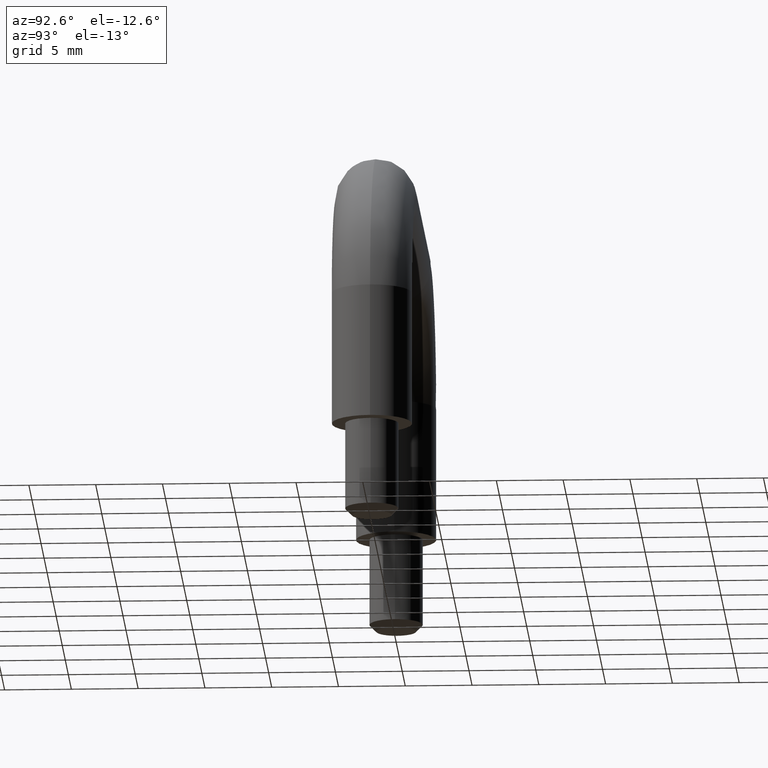
[diagram: clean part render]
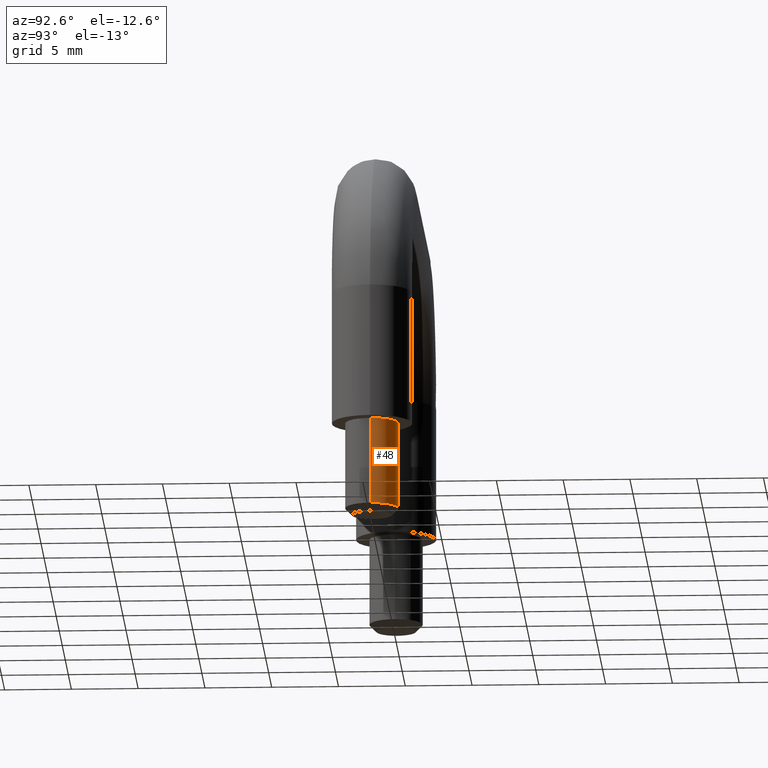
[diagram: same view with one face highlighted and labeled with its STEP entity id]
A machine part, auxiliary view. The second image highlights one B-rep face of the part: STEP entity #48.
In plain terms, the highlighted cylindrical surface (edge-blend (fillet) strip) has radius 2 mm, axis along (-0, 0, -1).
Its self-contained STEP definition (entity closure, byte-faithful):
#48=ADVANCED_FACE('',(#145),#144,.T.);
#144=CYLINDRICAL_SURFACE('',#419,2.00000000000E+00);
#145=FACE_OUTER_BOUND('',#420,.T.);
#416=CARTESIAN_POINT('',(1.99999999999E+01,0.00000000000E+00,-1.92500000000E+01));
#417=DIRECTION('',(-0.00000000000E+00,0.00000000000E+00,-1.00000000000E+00));
#418=DIRECTION('',(-1.00000000000E+00,-0.00000000000E+00,0.00000000000E+00));
#419=AXIS2_PLACEMENT_3D('',#416,#417,#418);
#420=EDGE_LOOP('',(#580,#581,#582,#583));
#580=ORIENTED_EDGE('',*,*,#656,.F.);
#581=ORIENTED_EDGE('',*,*,#657,.F.);
#582=ORIENTED_EDGE('',*,*,#641,.T.);
#583=ORIENTED_EDGE('',*,*,#658,.T.);
#641=EDGE_CURVE('',#707,#706,#714,.T.);
#656=EDGE_CURVE('',#814,#815,#816,.T.);
#657=EDGE_CURVE('',#707,#814,#822,.T.);
#658=EDGE_CURVE('',#706,#815,#828,.T.);
#706=VERTEX_POINT('',#974);
#707=VERTEX_POINT('',#975);
#714=CIRCLE('',#983,2.00000000000E+00);
#814=VERTEX_POINT('',#1047);
#815=VERTEX_POINT('',#1048);
#816=CIRCLE('',#1052,2.00000000000E+00);
#822=(BOUNDED_CURVE() B_SPLINE_CURVE(1,(#1053,#1054),.UNSPECIFIED.,.F.,.F.) B_SPLINE_CURVE_WITH_KNOTS((2,2),(8.33333347523E-02,9.16666664312E-01),.UNSPECIFIED.) CURVE() GEOMETRIC_REPRESENTATION_ITEM() RATIONAL_B_SPLINE_CURVE((1.00000000000E+00,1.00000000000E+00)) REPRESENTATION_ITEM('') );
#828=(BOUNDED_CURVE() B_SPLINE_CURVE(1,(#1055,#1056),.UNSPECIFIED.,.F.,.F.) B_SPLINE_CURVE_WITH_KNOTS((2,2),(8.33333333333E-02,9.16666666667E-01),.UNSPECIFIED.) CURVE() GEOMETRIC_REPRESENTATION_ITEM() RATIONAL_B_SPLINE_CURVE((7.50000000000E-01,7.50000000000E-01)) REPRESENTATION_ITEM('') );
#974=CARTESIAN_POINT('',(2.19999999999E+01,7.40148683083E-17,-1.60000000000E+01));
#975=CARTESIAN_POINT('',(1.79999999999E+01,-4.66965875689E-16,-1.60000000000E+01));
#980=CARTESIAN_POINT('',(1.99999999999E+01,0.00000000000E+00,-1.60000000000E+01));
#981=DIRECTION('',(0.00000000000E+00,0.00000000000E+00,-1.00000000000E+00));
#982=DIRECTION('',(-1.00000000000E+00,-1.11022302463E-16,-0.00000000000E+00));
#983=AXIS2_PLACEMENT_3D('',#980,#981,#982);
#1047=CARTESIAN_POINT('',(1.79999999999E+01,-4.66965875689E-16,-2.25000000000E+01));
#1048=CARTESIAN_POINT('',(2.19999999999E+01,9.62193288008E-16,-2.25000000000E+01));
#1049=CARTESIAN_POINT('',(1.99999999999E+01,0.00000000000E+00,-2.25000000000E+01));
#1050=DIRECTION('',(0.00000000000E+00,0.00000000000E+00,-1.00000000000E+00));
#1051=DIRECTION('',(-1.00000000000E+00,-1.11022302463E-16,-0.00000000000E+00));
#1052=AXIS2_PLACEMENT_3D('',#1049,#1050,#1051);
#1053=CARTESIAN_POINT('',(1.79999999999E+01,0.00000000000E+00,-1.60000000111E+01));
#1054=CARTESIAN_POINT('',(1.79999999999E+01,0.00000000000E+00,-2.24999999816E+01));
#1055=CARTESIAN_POINT('',(2.19999999999E+01,-7.40148683083E-17,-1.60000000000E+01));
#1056=CARTESIAN_POINT('',(2.19999999999E+01,-7.40148683083E-17,-2.25000000000E+01));